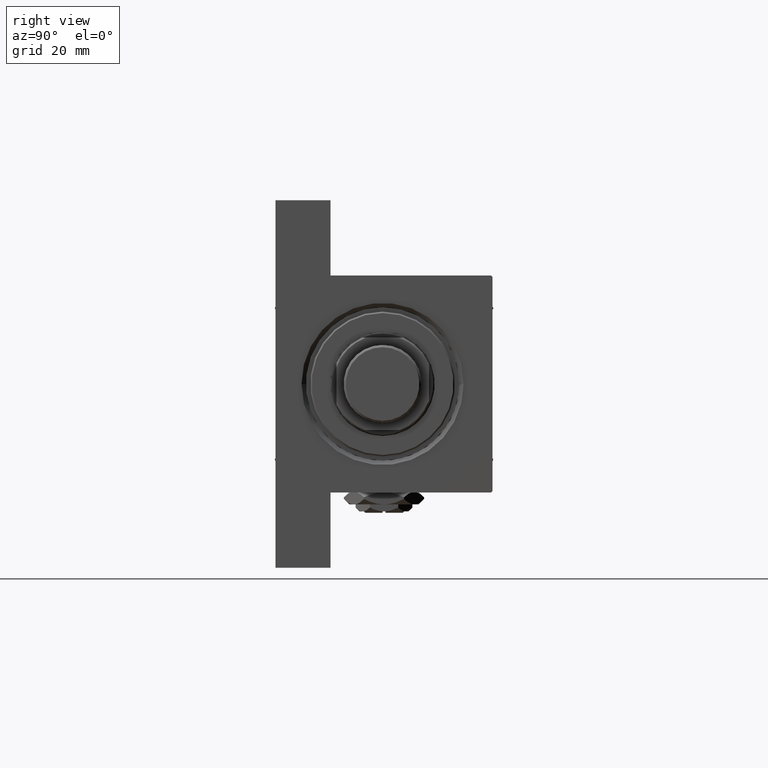
[diagram: clean part render]
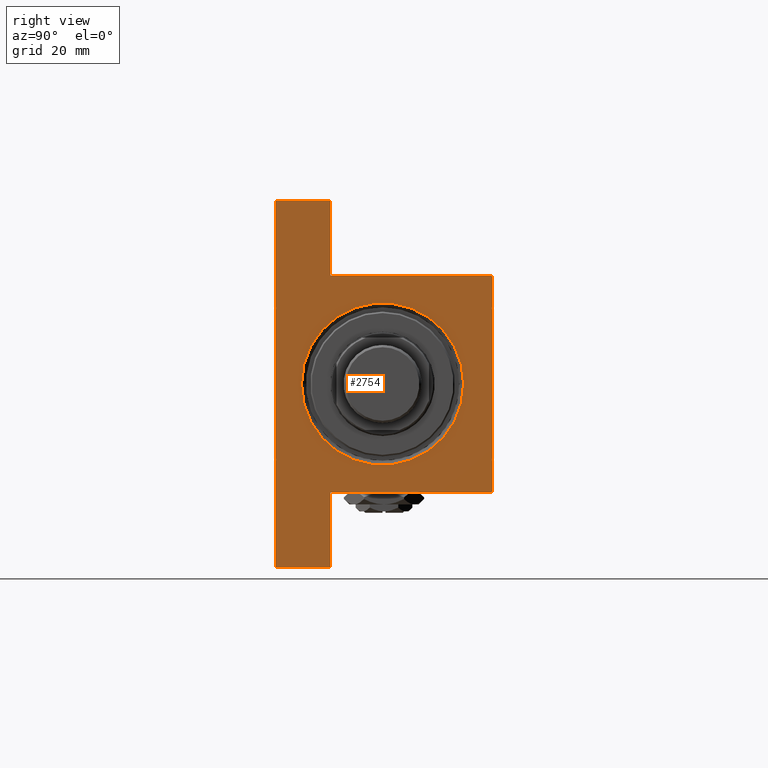
[diagram: same view with one face highlighted and labeled with its STEP entity id]
A machine part, right view. The second image highlights one B-rep face of the part: STEP entity #2754.
In plain terms, the highlighted planar face has unit normal (-1, 0, 0).
Its self-contained STEP definition (entity closure, byte-faithful):
#1816 = CIRCLE ( 'NONE', #44677, 28.00000000000003908 ) ;
#1985 = VERTEX_POINT ( 'NONE', #9670 ) ;
#2109 = CARTESIAN_POINT ( 'NONE',  ( 138.9999999999999432, 37.49999999999999289, -18.50000000000000000 ) ) ;
#2538 = AXIS2_PLACEMENT_3D ( 'NONE', #13162, #32544, #28797 ) ;
#2754 = ADVANCED_FACE ( 'NONE', ( #8936, #17137 ), #27806, .F. ) ;
#3194 = VECTOR ( 'NONE', #32963, 1000.000000000000114 ) ;
#4602 = CIRCLE ( 'NONE', #46669, 28.00000000000003908 ) ;
#5078 = EDGE_CURVE ( 'NONE', #49013, #36426, #1816, .T. ) ;
#6070 = VECTOR ( 'NONE', #21552, 1000.000000000000114 ) ;
#6375 = CARTESIAN_POINT ( 'NONE',  ( 138.9999999999999716, -37.50000000000000000, 36.99999999999997868 ) ) ;
#6765 = DIRECTION ( 'NONE',  ( -1.067522139062650277E-15, -1.000000000000000000, 0.000000000000000000 ) ) ;
#7289 = VERTEX_POINT ( 'NONE', #43927 ) ;
#7581 = VECTOR ( 'NONE', #30993, 1000.000000000000000 ) ;
#8028 = CARTESIAN_POINT ( 'NONE',  ( 138.9999999999999716, -37.50000000000000711, -18.50000000000000355 ) ) ;
#8108 = VECTOR ( 'NONE', #37988, 1000.000000000000000 ) ;
#8936 = FACE_BOUND ( 'NONE', #47773, .T. ) ;
#9670 = CARTESIAN_POINT ( 'NONE',  ( 138.9999999999999432, -63.50000000000002842, -37.50000000000000000 ) ) ;
#10588 = DIRECTION ( 'NONE',  ( 0.000000000000000000, -1.000000000000000000, 0.000000000000000000 ) ) ;
#10753 = CARTESIAN_POINT ( 'NONE',  ( 138.9999999999999716, 63.50000000000000000, -37.50000000000000000 ) ) ;
#10917 = CARTESIAN_POINT ( 'NONE',  ( 138.9999999999999716, 0.000000000000000000, -0.5000000000000004441 ) ) ;
#11218 = CARTESIAN_POINT ( 'NONE',  ( 138.9999999999999716, 63.50000000000000000, -18.50000000000000000 ) ) ;
#11256 = CARTESIAN_POINT ( 'NONE',  ( 138.9999999999999716, 63.50000000000000000, -18.50000000000000000 ) ) ;
#11880 = CARTESIAN_POINT ( 'NONE',  ( 138.9999999999999716, 37.50000000000000000, 37.49999999999999289 ) ) ;
#11946 = DIRECTION ( 'NONE',  ( 0.000000000000000000, 0.000000000000000000, -1.000000000000000000 ) ) ;
#12248 = ORIENTED_EDGE ( 'NONE', *, *, #35819, .T. ) ;
#13162 = CARTESIAN_POINT ( 'NONE',  ( 138.9999999999999716, 0.000000000000000000, 0.000000000000000000 ) ) ;
#15063 = VERTEX_POINT ( 'NONE', #34227 ) ;
#15123 = EDGE_CURVE ( 'NONE', #45897, #46417, #30269, .T. ) ;
#15425 = ORIENTED_EDGE ( 'NONE', *, *, #45388, .T. ) ;
#17137 = FACE_OUTER_BOUND ( 'NONE', #25072, .T. ) ;
#17334 = EDGE_CURVE ( 'NONE', #45897, #7289, #43681, .T. ) ;
#17871 = CARTESIAN_POINT ( 'NONE',  ( 138.9999999999999716, 0.000000000000000000, -28.50000000000003908 ) ) ;
#18605 = DIRECTION ( 'NONE',  ( 0.000000000000000000, 0.000000000000000000, 1.000000000000000000 ) ) ;
#19277 = VECTOR ( 'NONE', #11946, 1000.000000000000000 ) ;
#19677 = VECTOR ( 'NONE', #6765, 1000.000000000000000 ) ;
#20249 = CARTESIAN_POINT ( 'NONE',  ( 138.9999999999999716, -37.50000000000000000, 36.99999999999997868 ) ) ;
#20398 = CARTESIAN_POINT ( 'NONE',  ( 138.9999999999999432, -63.50000000000002842, -18.50000000000000000 ) ) ;
#20594 = VECTOR ( 'NONE', #10588, 1000.000000000000000 ) ;
#21552 = DIRECTION ( 'NONE',  ( 0.000000000000000000, -0.7071067811865474617, 0.7071067811865474617 ) ) ;
#22668 = LINE ( 'NONE', #11256, #33341 ) ;
#22980 = LINE ( 'NONE', #23227, #44070 ) ;
#23079 = EDGE_CURVE ( 'NONE', #38242, #1985, #42726, .T. ) ;
#23182 = VECTOR ( 'NONE', #48895, 1000.000000000000000 ) ;
#23227 = CARTESIAN_POINT ( 'NONE',  ( 138.9999999999999432, -63.50000000000002842, -18.50000000000000000 ) ) ;
#23473 = DIRECTION ( 'NONE',  ( -0.000000000000000000, -1.000000000000000000, -0.000000000000000000 ) ) ;
#23981 = VERTEX_POINT ( 'NONE', #48483 ) ;
#24266 = ORIENTED_EDGE ( 'NONE', *, *, #17334, .T. ) ;
#24506 = EDGE_CURVE ( 'NONE', #26745, #38242, #22980, .T. ) ;
#25072 = EDGE_LOOP ( 'NONE', ( #38101, #24266, #15425, #42767, #34660, #26019, #33902, #40365, #37399, #12248 ) ) ;
#25805 = DIRECTION ( 'NONE',  ( -1.000000000000000000, -0.000000000000000000, 0.000000000000000000 ) ) ;
#26019 = ORIENTED_EDGE ( 'NONE', *, *, #24506, .T. ) ;
#26200 = LINE ( 'NONE', #48841, #20594 ) ;
#26641 = DIRECTION ( 'NONE',  ( 0.000000000000000000, 0.000000000000000000, -1.000000000000000000 ) ) ;
#26745 = VERTEX_POINT ( 'NONE', #8028 ) ;
#27806 = PLANE ( 'NONE',  #2538 ) ;
#27844 = VERTEX_POINT ( 'NONE', #20249 ) ;
#28797 = DIRECTION ( 'NONE',  ( 0.000000000000000000, 0.000000000000000000, 1.000000000000000000 ) ) ;
#28971 = LINE ( 'NONE', #6375, #3194 ) ;
#30269 = LINE ( 'NONE', #11880, #7581 ) ;
#30303 = CARTESIAN_POINT ( 'NONE',  ( 138.9999999999999716, -37.50000000000000000, 37.49999999999997868 ) ) ;
#30993 = DIRECTION ( 'NONE',  ( 0.000000000000000000, 0.000000000000000000, -1.000000000000000000 ) ) ;
#31186 = ORIENTED_EDGE ( 'NONE', *, *, #5078, .T. ) ;
#32146 = CARTESIAN_POINT ( 'NONE',  ( 138.9999999999999716, 37.50000000000000000, 36.99999999999999289 ) ) ;
#32544 = DIRECTION ( 'NONE',  ( -1.000000000000000000, -0.000000000000000000, 0.000000000000000000 ) ) ;
#32963 = DIRECTION ( 'NONE',  ( -0.000000000000000000, -0.7071067811865474617, -0.7071067811865474617 ) ) ;
#33341 = VECTOR ( 'NONE', #26641, 1000.000000000000000 ) ;
#33725 = CARTESIAN_POINT ( 'NONE',  ( 138.9999999999999716, 37.50000000000000000, 37.49999999999999289 ) ) ;
#33902 = ORIENTED_EDGE ( 'NONE', *, *, #23079, .T. ) ;
#34227 = CARTESIAN_POINT ( 'NONE',  ( 138.9999999999999716, 63.50000000000000000, -18.50000000000000000 ) ) ;
#34511 = ORIENTED_EDGE ( 'NONE', *, *, #34986, .T. ) ;
#34583 = CARTESIAN_POINT ( 'NONE',  ( 138.9999999999999716, 0.000000000000000000, -0.5000000000000004441 ) ) ;
#34660 = ORIENTED_EDGE ( 'NONE', *, *, #45132, .T. ) ;
#34986 = EDGE_CURVE ( 'NONE', #36426, #49013, #4602, .T. ) ;
#35023 = CARTESIAN_POINT ( 'NONE',  ( 138.9999999999999432, -63.50000000000002842, -18.50000000000000000 ) ) ;
#35819 = EDGE_CURVE ( 'NONE', #15063, #46417, #41514, .T. ) ;
#36426 = VERTEX_POINT ( 'NONE', #43305 ) ;
#37399 = ORIENTED_EDGE ( 'NONE', *, *, #39206, .F. ) ;
#37988 = DIRECTION ( 'NONE',  ( 0.000000000000000000, -9.251858538542972814E-17, -1.000000000000000000 ) ) ;
#38101 = ORIENTED_EDGE ( 'NONE', *, *, #15123, .F. ) ;
#38229 = LINE ( 'NONE', #30303, #8108 ) ;
#38242 = VERTEX_POINT ( 'NONE', #20398 ) ;
#38909 = EDGE_CURVE ( 'NONE', #47751, #1985, #26200, .T. ) ;
#39206 = EDGE_CURVE ( 'NONE', #15063, #47751, #22668, .T. ) ;
#39643 = EDGE_CURVE ( 'NONE', #23981, #27844, #28971, .T. ) ;
#40365 = ORIENTED_EDGE ( 'NONE', *, *, #38909, .F. ) ;
#40436 = CARTESIAN_POINT ( 'NONE',  ( 138.9999999999999716, 37.00000000000000000, 37.49999999999999289 ) ) ;
#41174 = LINE ( 'NONE', #33725, #23182 ) ;
#41514 = LINE ( 'NONE', #11218, #19677 ) ;
#42726 = LINE ( 'NONE', #35023, #19277 ) ;
#42767 = ORIENTED_EDGE ( 'NONE', *, *, #39643, .T. ) ;
#43305 = CARTESIAN_POINT ( 'NONE',  ( 138.9999999999999716, 3.429011037612594009E-15, 27.50000000000003908 ) ) ;
#43681 = LINE ( 'NONE', #40436, #6070 ) ;
#43927 = CARTESIAN_POINT ( 'NONE',  ( 138.9999999999999716, 37.00000000000000000, 37.49999999999999289 ) ) ;
#44070 = VECTOR ( 'NONE', #23473, 1000.000000000000000 ) ;
#44677 = AXIS2_PLACEMENT_3D ( 'NONE', #10917, #25805, #18605 ) ;
#45132 = EDGE_CURVE ( 'NONE', #27844, #26745, #38229, .T. ) ;
#45289 = DIRECTION ( 'NONE',  ( 0.000000000000000000, 0.000000000000000000, 1.000000000000000000 ) ) ;
#45388 = EDGE_CURVE ( 'NONE', #7289, #23981, #41174, .T. ) ;
#45534 = DIRECTION ( 'NONE',  ( -1.000000000000000000, -0.000000000000000000, 0.000000000000000000 ) ) ;
#45897 = VERTEX_POINT ( 'NONE', #32146 ) ;
#46417 = VERTEX_POINT ( 'NONE', #2109 ) ;
#46669 = AXIS2_PLACEMENT_3D ( 'NONE', #34583, #45534, #45289 ) ;
#47751 = VERTEX_POINT ( 'NONE', #10753 ) ;
#47773 = EDGE_LOOP ( 'NONE', ( #31186, #34511 ) ) ;
#48483 = CARTESIAN_POINT ( 'NONE',  ( 138.9999999999999716, -37.00000000000000000, 37.49999999999997868 ) ) ;
#48841 = CARTESIAN_POINT ( 'NONE',  ( 138.9999999999999716, 37.50000000000000000, -37.50000000000000000 ) ) ;
#48895 = DIRECTION ( 'NONE',  ( 0.000000000000000000, -1.000000000000000000, -1.850371707708594316E-16 ) ) ;
#49013 = VERTEX_POINT ( 'NONE', #17871 ) ;